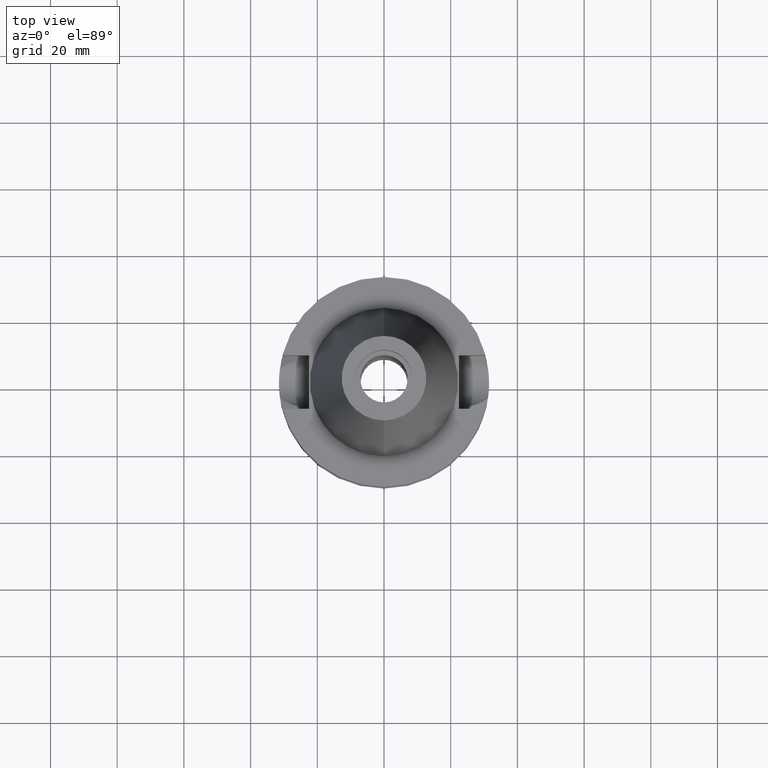
[diagram: clean part render]
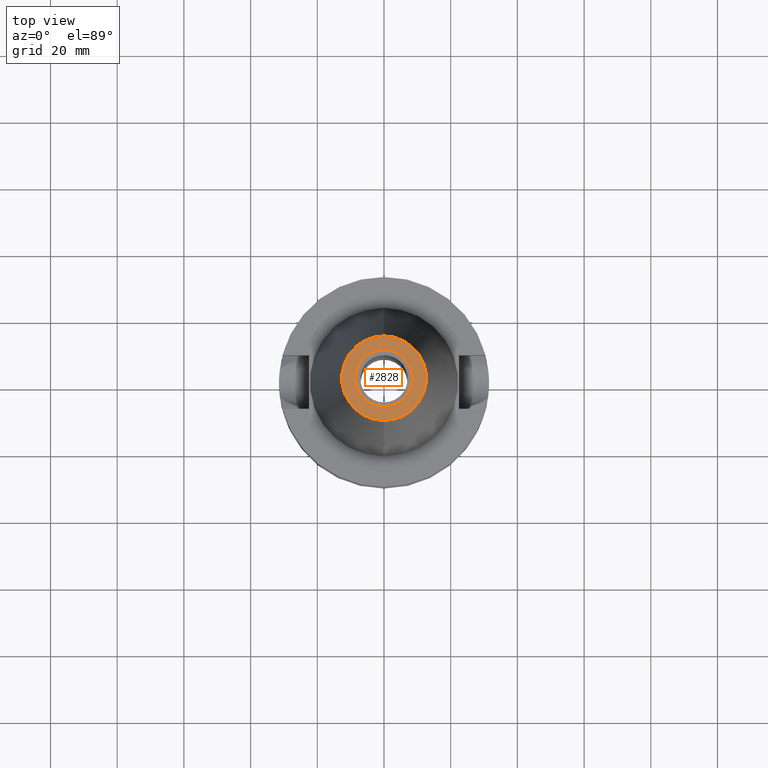
[diagram: same view with one face highlighted and labeled with its STEP entity id]
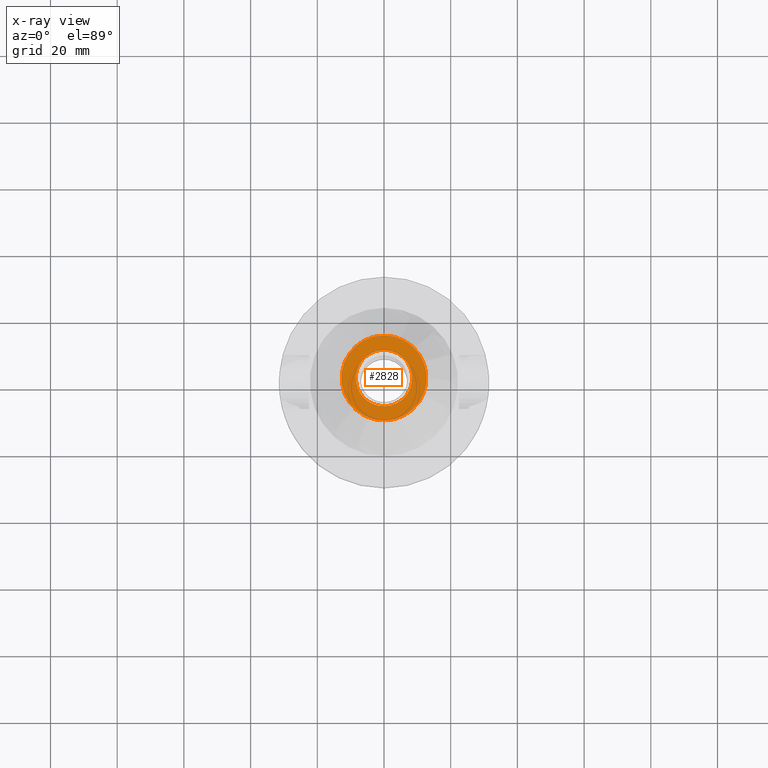
[diagram: x-ray of the same camera — body ghosted, the highlighted face saturated]
A machine part, top view. The second image highlights one B-rep face of the part: STEP entity #2828.
The next image is the same camera in x-ray: the body ghosted, the highlighted face saturated — about 0% of this face is hidden behind the body in this view.
In plain terms, the highlighted planar face has unit normal (0, 0, -1).
Its self-contained STEP definition (entity closure, byte-faithful):
#285 = EDGE_CURVE ( 'NONE', #2462, #1411, #2387, .T. ) ;
#401 = CARTESIAN_POINT ( 'NONE',  ( 0.0000000000000000000, -12.68766899429999917, 65.40000000000000568 ) ) ;
#429 = EDGE_LOOP ( 'NONE', ( #663, #2940 ) ) ;
#448 = DIRECTION ( 'NONE',  ( 0.0000000000000000000, 0.0000000000000000000, 1.000000000000000000 ) ) ;
#475 = DIRECTION ( 'NONE',  ( 0.0000000000000000000, -1.000000000000000000, 0.0000000000000000000 ) ) ;
#544 = DIRECTION ( 'NONE',  ( 0.0000000000000000000, 0.0000000000000000000, -1.000000000000000000 ) ) ;
#547 = CIRCLE ( 'NONE', #2670, 12.68766899429999917 ) ;
#663 = ORIENTED_EDGE ( 'NONE', *, *, #2707, .F. ) ;
#747 = EDGE_CURVE ( 'NONE', #1411, #2462, #2239, .T. ) ;
#751 = FACE_OUTER_BOUND ( 'NONE', #429, .T. ) ;
#864 = DIRECTION ( 'NONE',  ( 0.0000000000000000000, 0.0000000000000000000, -1.000000000000000000 ) ) ;
#942 = DIRECTION ( 'NONE',  ( 0.0000000000000000000, 0.0000000000000000000, 1.000000000000000000 ) ) ;
#1018 = FACE_BOUND ( 'NONE', #1096, .T. ) ;
#1096 = EDGE_LOOP ( 'NONE', ( #1927, #1273 ) ) ;
#1241 = PLANE ( 'NONE',  #2435 ) ;
#1273 = ORIENTED_EDGE ( 'NONE', *, *, #285, .F. ) ;
#1364 = CIRCLE ( 'NONE', #1761, 12.68766899429999917 ) ;
#1411 = VERTEX_POINT ( 'NONE', #2262 ) ;
#1456 = EDGE_CURVE ( 'NONE', #3112, #3049, #547, .T. ) ;
#1666 = DIRECTION ( 'NONE',  ( 0.0000000000000000000, 0.0000000000000000000, -1.000000000000000000 ) ) ;
#1740 = DIRECTION ( 'NONE',  ( 0.0000000000000000000, -1.000000000000000000, 0.0000000000000000000 ) ) ;
#1761 = AXIS2_PLACEMENT_3D ( 'NONE', #2310, #864, #2038 ) ;
#1927 = ORIENTED_EDGE ( 'NONE', *, *, #747, .F. ) ;
#2038 = DIRECTION ( 'NONE',  ( 0.0000000000000000000, 1.000000000000000000, 0.0000000000000000000 ) ) ;
#2139 = DIRECTION ( 'NONE',  ( 0.0000000000000000000, -1.000000000000000000, 0.0000000000000000000 ) ) ;
#2149 = CARTESIAN_POINT ( 'NONE',  ( 0.0000000000000000000, 0.0000000000000000000, 65.40000000000000568 ) ) ;
#2239 = CIRCLE ( 'NONE', #2894, 8.500000000000000000 ) ;
#2262 = CARTESIAN_POINT ( 'NONE',  ( 0.0000000000000000000, 8.500000000000000000, 65.40000000000000568 ) ) ;
#2299 = CARTESIAN_POINT ( 'NONE',  ( 0.0000000000000000000, -8.500000000000000000, 65.40000000000000568 ) ) ;
#2310 = CARTESIAN_POINT ( 'NONE',  ( 0.0000000000000000000, 0.0000000000000000000, 65.40000000000000568 ) ) ;
#2387 = CIRCLE ( 'NONE', #2783, 8.500000000000000000 ) ;
#2435 = AXIS2_PLACEMENT_3D ( 'NONE', #3080, #544, #1740 ) ;
#2451 = CARTESIAN_POINT ( 'NONE',  ( 0.0000000000000000000, 0.0000000000000000000, 65.40000000000000568 ) ) ;
#2462 = VERTEX_POINT ( 'NONE', #2299 ) ;
#2610 = DIRECTION ( 'NONE',  ( 0.0000000000000000000, 1.000000000000000000, 0.0000000000000000000 ) ) ;
#2615 = CARTESIAN_POINT ( 'NONE',  ( 0.0000000000000000000, 0.0000000000000000000, 65.40000000000000568 ) ) ;
#2670 = AXIS2_PLACEMENT_3D ( 'NONE', #2451, #1666, #475 ) ;
#2707 = EDGE_CURVE ( 'NONE', #3049, #3112, #1364, .T. ) ;
#2783 = AXIS2_PLACEMENT_3D ( 'NONE', #2615, #448, #2139 ) ;
#2828 = ADVANCED_FACE ( 'NONE', ( #751, #1018 ), #1241, .F. ) ;
#2894 = AXIS2_PLACEMENT_3D ( 'NONE', #2149, #942, #2610 ) ;
#2940 = ORIENTED_EDGE ( 'NONE', *, *, #1456, .F. ) ;
#2956 = CARTESIAN_POINT ( 'NONE',  ( 0.0000000000000000000, 12.68766899429999917, 65.40000000000000568 ) ) ;
#3049 = VERTEX_POINT ( 'NONE', #2956 ) ;
#3080 = CARTESIAN_POINT ( 'NONE',  ( 0.0000000000000000000, 0.0000000000000000000, 65.40000000000000568 ) ) ;
#3112 = VERTEX_POINT ( 'NONE', #401 ) ;